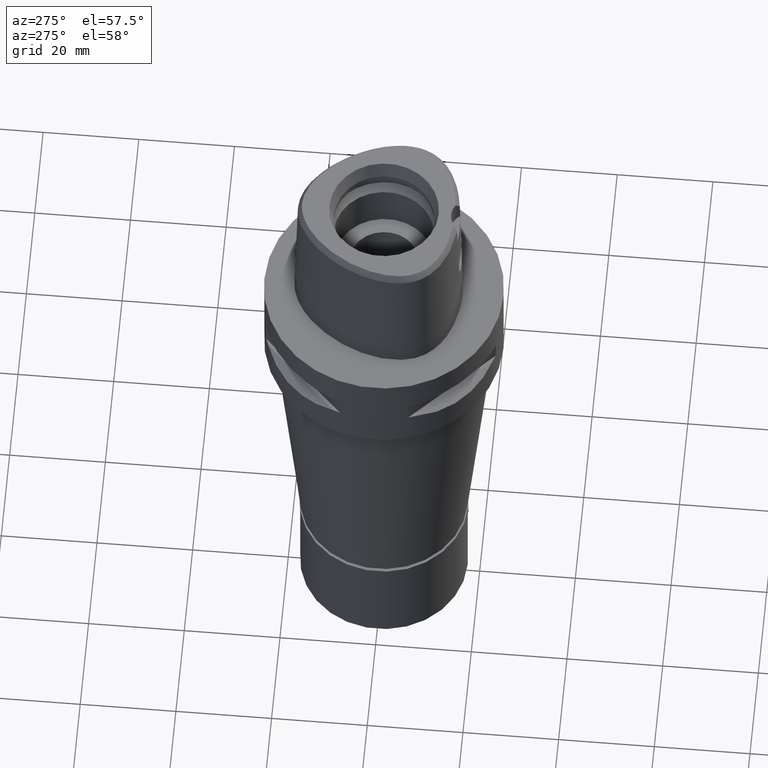
[diagram: clean part render]
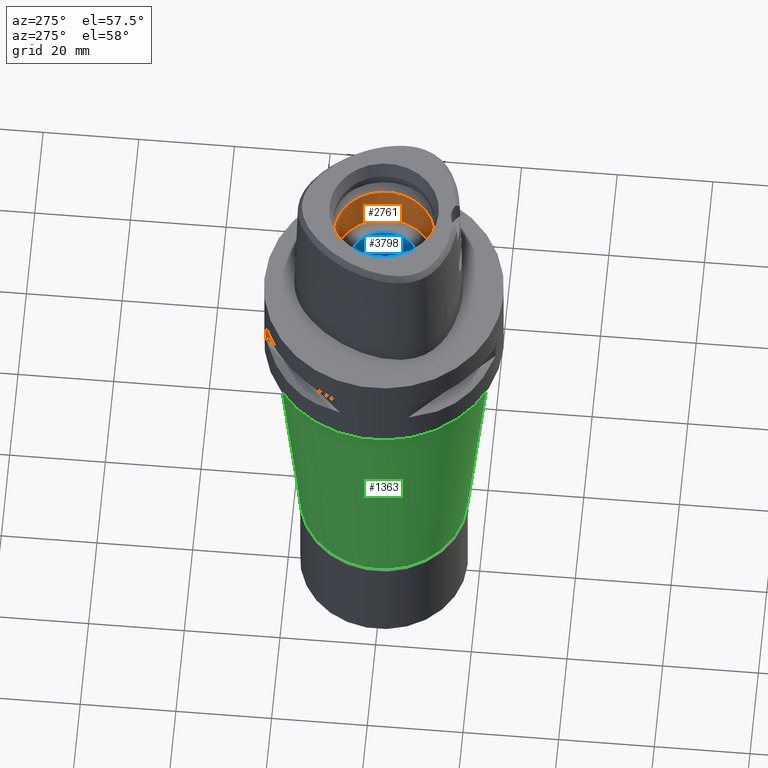
[diagram: same view with three faces highlighted in distinct colors, each labeled with its STEP entity id]
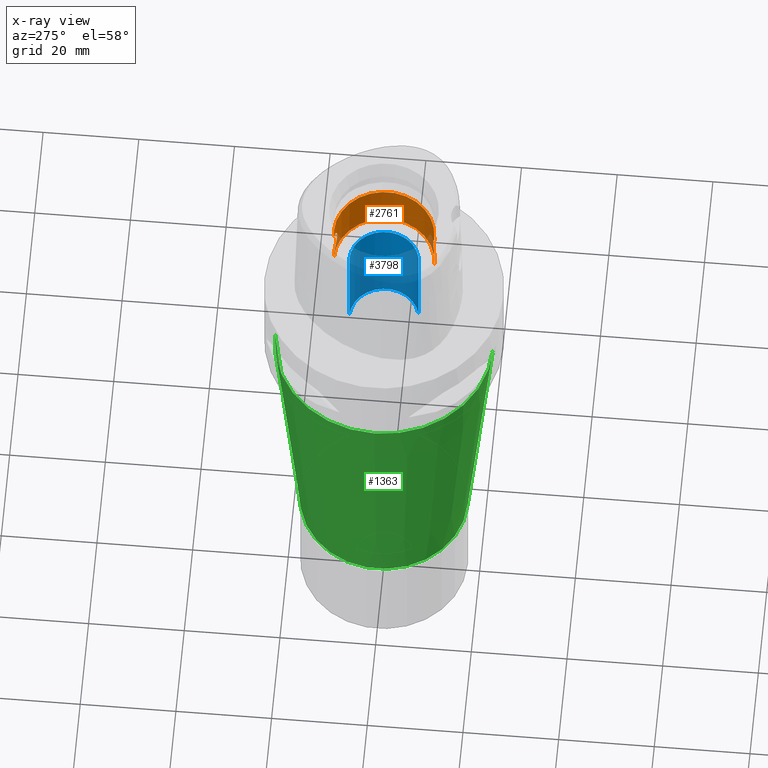
[diagram: x-ray of the same camera — body ghosted, the three highlighted faces saturated]
A machine part, auxiliary view with three faces highlighted in distinct colors.
The next image is the same camera in x-ray (body ghosted, the three faces saturated) — at least one of them is partly hidden behind the body in this view.
Their STEP definitions:

[orange] entity #2761 — the highlighted cylindrical surface (partial cylindrical patch) has radius 10.5 mm, axis along (0, 0, -1).
#10 = CARTESIAN_POINT ( 'NONE',  ( 3.027607236360491338, -10.05429310237827423, 14.38135529722916139 ) ) ;
#20 = CARTESIAN_POINT ( 'NONE',  ( 2.266059277725712473, 10.25301290801306564, 16.04582614265725127 ) ) ;
#164 = CARTESIAN_POINT ( 'NONE',  ( 2.484594037386860244, -10.20184754279077666, 15.76909523304286687 ) ) ;
#187 = DIRECTION ( 'NONE',  ( 0.0000000000000000000, 1.000000000000000000, 0.0000000000000000000 ) ) ;
#191 = CARTESIAN_POINT ( 'NONE',  ( 1.068304840379142640, 10.44547733483864072, 11.14301126591764124 ) ) ;
#245 = CARTESIAN_POINT ( 'NONE',  ( 2.125917809821220583, 10.28253520498295259, 11.81294270820976067 ) ) ;
#289 = CARTESIAN_POINT ( 'NONE',  ( 0.0000000000000000000, -10.50000000000000000, 10.00000000000000000 ) ) ;
#291 = CARTESIAN_POINT ( 'NONE',  ( 2.683269133176498844, -10.15143825073914741, 12.54912944303389821 ) ) ;
#297 = CARTESIAN_POINT ( 'NONE',  ( 1.741009038499361061, 10.35482127465683000, 11.49467963126939907 ) ) ;
#310 = ORIENTED_EDGE ( 'NONE', *, *, #1206, .T. ) ;
#317 = CARTESIAN_POINT ( 'NONE',  ( 1.707746356238994512, -10.36020401293069249, 11.47292517123250022 ) ) ;
#318 = VERTEX_POINT ( 'NONE', #1461 ) ;
#324 = CARTESIAN_POINT ( 'NONE',  ( 2.751833750823429625, 10.13317589947079078, 15.31899371384186104 ) ) ;
#339 = CARTESIAN_POINT ( 'NONE',  ( 2.844275244107489442, -10.10750057597628526, 12.89874350943842174 ) ) ;
#344 = CARTESIAN_POINT ( 'NONE',  ( 2.954882638286912222, 10.07596013546089253, 14.76248388676107304 ) ) ;
#360 = CARTESIAN_POINT ( 'NONE',  ( 2.899433381332750859, -10.09218068781909317, 14.96967267542248159 ) ) ;
#367 = CARTESIAN_POINT ( 'NONE',  ( 1.179391020529942269, 10.43344386839382310, 16.81277616977013523 ) ) ;
#389 = DIRECTION ( 'NONE',  ( 0.0000000000000000000, 0.0000000000000000000, 1.000000000000000000 ) ) ;
#391 = CARTESIAN_POINT ( 'NONE',  ( 1.833449799978573935, -10.33866271675340975, 11.56221769112445052 ) ) ;
#402 = CARTESIAN_POINT ( 'NONE',  ( 0.0000000000000000000, 10.50000000000000000, 10.00000000000000000 ) ) ;
#416 = CARTESIAN_POINT ( 'NONE',  ( 1.179453071966998223, -10.43343653779657565, 11.18724984501825048 ) ) ;
#495 = CARTESIAN_POINT ( 'NONE',  ( 0.3776990394879757851, -10.49999999999999822, 10.94999999999999751 ) ) ;
#520 = CARTESIAN_POINT ( 'NONE',  ( 0.7784719832900152126, -10.47826499193357641, 11.02113842329111115 ) ) ;
#544 = CARTESIAN_POINT ( 'NONE',  ( 2.449231481420490297, -10.21047344920699906, 15.81807234377296112 ) ) ;
#555 = AXIS2_PLACEMENT_3D ( 'NONE', #4542, #1146, #3091 ) ;
#582 = FACE_OUTER_BOUND ( 'NONE', #3289, .T. ) ;
#601 = CARTESIAN_POINT ( 'NONE',  ( 2.249117324495596648, 10.25680736615500166, 11.93506107646878611 ) ) ;
#616 = CARTESIAN_POINT ( 'NONE',  ( 1.068247455599155682, -10.44548337543123928, 16.85701016503113792 ) ) ;
#626 = CARTESIAN_POINT ( 'NONE',  ( 1.641185955450503720, 10.37094866851878905, 11.42913987663184905 ) ) ;
#647 = VECTOR ( 'NONE', #2576, 1000.000000000000000 ) ;
#653 = CARTESIAN_POINT ( 'NONE',  ( 0.7660006551117045648, 10.47222196285941109, 11.04602839572559425 ) ) ;
#674 = CARTESIAN_POINT ( 'NONE',  ( 2.342968627457624908, -10.23558722573572766, 12.04475145765551147 ) ) ;
#693 = CARTESIAN_POINT ( 'NONE',  ( 3.050005080898542165, -10.04725334564248307, 13.81500911718046076 ) ) ;
#699 = CARTESIAN_POINT ( 'NONE',  ( 1.716771890593367100, 10.35871102781786313, 16.52095790634485439 ) ) ;
#715 = CARTESIAN_POINT ( 'NONE',  ( 2.619496371660233969, -10.16802340642455604, 12.43749825123569508 ) ) ;
#723 = CARTESIAN_POINT ( 'NONE',  ( 1.612746601672543800, 10.37583416522087809, 16.59107516795645410 ) ) ;
#738 = CARTESIAN_POINT ( 'NONE',  ( 2.888899562011218780, -10.09491797827999449, 13.01950824191362699 ) ) ;
#745 = CARTESIAN_POINT ( 'NONE',  ( 1.210530326363612019, 10.42987676988509627, 16.79950987502767745 ) ) ;
#763 = CARTESIAN_POINT ( 'NONE',  ( 1.989381541700123712, -10.31000550252612946, 11.68587608860982208 ) ) ;
#768 = CARTESIAN_POINT ( 'NONE',  ( 0.0000000000000000000, 10.50000000000000000, 17.05000000000000071 ) ) ;
#795 = CARTESIAN_POINT ( 'NONE',  ( 2.791161911923253136, 10.12234823481193580, 15.23288588798741294 ) ) ;
#799 = DIRECTION ( 'NONE',  ( 0.0000000000000000000, 0.0000000000000000000, 1.000000000000000000 ) ) ;
#822 = VERTEX_POINT ( 'NONE', #1502 ) ;
#889 = CARTESIAN_POINT ( 'NONE',  ( 0.0000000000000000000, -10.50000000000000000, 10.94999999999999929 ) ) ;
#918 = ORIENTED_EDGE ( 'NONE', *, *, #4323, .F. ) ;
#939 = CARTESIAN_POINT ( 'NONE',  ( 1.811842809112848895, -10.34269679768338257, 16.45557948583557462 ) ) ;
#971 = CARTESIAN_POINT ( 'NONE',  ( 2.036679914428217053, 10.30054692282973505, 11.72948026184532822 ) ) ;
#990 = CARTESIAN_POINT ( 'NONE',  ( 1.568097863131003189, -10.38225193758933784, 16.61615038516162102 ) ) ;
#996 = CARTESIAN_POINT ( 'NONE',  ( 1.568183029894659297, 10.38223911306316793, 11.38390064694139880 ) ) ;
#1045 = CARTESIAN_POINT ( 'NONE',  ( 2.328117555959193563, -10.23900546424033919, 15.97295162130381918 ) ) ;
#1053 = CARTESIAN_POINT ( 'NONE',  ( 0.0000000000000000000, 10.50000000000000000, 10.94999999999999929 ) ) ;
#1072 = CARTESIAN_POINT ( 'NONE',  ( 2.912211511062697156, -10.08825325305797627, 13.09221294453771911 ) ) ;
#1077 = CARTESIAN_POINT ( 'NONE',  ( 3.033106798431654649, 10.05272106261938525, 14.37597179214599841 ) ) ;
#1091 = CARTESIAN_POINT ( 'NONE',  ( 2.741672579531738485, -10.13585776235383484, 15.33718066085879173 ) ) ;
#1098 = CARTESIAN_POINT ( 'NONE',  ( 2.342902607979631568, 10.23560269218701180, 15.95532767843970845 ) ) ;
#1115 = CARTESIAN_POINT ( 'NONE',  ( 2.266144854621401361, -10.25299388352025787, 11.95426803284425610 ) ) ;
#1121 = CARTESIAN_POINT ( 'NONE',  ( 3.050000168970783410, 10.04725645812263757, 14.18510065152947419 ) ) ;
#1139 = CARTESIAN_POINT ( 'NONE',  ( 2.531016047136658731, -10.19036528538620878, 15.70189936972407274 ) ) ;
#1145 = CARTESIAN_POINT ( 'NONE',  ( 2.741748741093708031, 10.13583772775565350, 12.66297536229638965 ) ) ;
#1146 = DIRECTION ( 'NONE',  ( 0.0000000000000000000, 0.0000000000000000000, 1.000000000000000000 ) ) ;
#1170 = CARTESIAN_POINT ( 'NONE',  ( 1.756864160062843627, 10.35198327950409691, 16.49330503796353753 ) ) ;
#1206 = EDGE_CURVE ( 'NONE', #4276, #2969, #3174, .T. ) ;
#1269 = CARTESIAN_POINT ( 'NONE',  ( 0.0000000000000000000, -10.50000000000000000, 10.00000000000000000 ) ) ;
#1319 = CARTESIAN_POINT ( 'NONE',  ( 0.9838845370238309407, -10.45387372780990809, 16.88774268329863304 ) ) ;
#1324 = CARTESIAN_POINT ( 'NONE',  ( 2.517831763548803892, 10.19364012408456155, 12.27862306712738771 ) ) ;
#1344 = CARTESIAN_POINT ( 'NONE',  ( 2.136100343734112617, -10.28042929747009815, 16.17712836185316760 ) ) ;
#1367 = CARTESIAN_POINT ( 'NONE',  ( 1.141732985535315326, -10.43768196579646279, 16.82826384510322626 ) ) ;
#1398 = CARTESIAN_POINT ( 'NONE',  ( 1.456436929924989965, -10.39854506465477968, 16.68025671205563398 ) ) ;
#1419 = CARTESIAN_POINT ( 'NONE',  ( 1.669234959747533331, -10.36646163797745679, 16.55268481105852629 ) ) ;
#1428 = CARTESIAN_POINT ( 'NONE',  ( 1.669325064468442976, 10.36644722215271663, 11.44737411065967514 ) ) ;
#1447 = CARTESIAN_POINT ( 'NONE',  ( 1.707003811296404328, -10.36032678721340439, 11.47242214210652378 ) ) ;
#1455 = CARTESIAN_POINT ( 'NONE',  ( 2.834772115109987833, 10.11016348655484443, 15.12549303329436157 ) ) ;
#1461 = CARTESIAN_POINT ( 'NONE',  ( 0.0000000000000000000, 10.50000000000000000, 20.40000000000000213 ) ) ;
#1472 = CARTESIAN_POINT ( 'NONE',  ( 2.834826346757756799, -10.11014960679703911, 12.87464356492052531 ) ) ;
#1477 = CARTESIAN_POINT ( 'NONE',  ( 2.899493436784370992, 10.09216444762106768, 13.03050769528760000 ) ) ;
#1494 = CARTESIAN_POINT ( 'NONE',  ( 2.772319110776069184, -10.12750285136528561, 15.27174168419082534 ) ) ;
#1500 = CARTESIAN_POINT ( 'NONE',  ( 2.594875644332625075, 10.17449012125671892, 12.39333396167576318 ) ) ;
#1502 = CARTESIAN_POINT ( 'NONE',  ( 0.0000000000000000000, -10.50000000000000000, 10.94999999999999929 ) ) ;
#1520 = CARTESIAN_POINT ( 'NONE',  ( 1.342365910254549100, -10.41382946864366232, 11.26085191158715482 ) ) ;
#1529 = CARTESIAN_POINT ( 'NONE',  ( 2.888851203371929355, 10.09493059036141283, 14.98063416284209737 ) ) ;
#1549 = CARTESIAN_POINT ( 'NONE',  ( 2.531198843314137026, -10.19031986401626710, 15.70162992011681347 ) ) ;
#1554 = VERTEX_POINT ( 'NONE', #3913 ) ;
#1556 = CARTESIAN_POINT ( 'NONE',  ( 1.989303514921276106, 10.31002034770298259, 16.31419092006700922 ) ) ;
#1621 = DIRECTION ( 'NONE',  ( 0.0000000000000000000, -1.000000000000000000, 0.0000000000000000000 ) ) ;
#1626 = LINE ( 'NONE', #2382, #2234 ) ;
#1724 = CARTESIAN_POINT ( 'NONE',  ( 0.1867674398480352604, -10.49999999999999467, 17.04999999999999005 ) ) ;
#1729 = CARTESIAN_POINT ( 'NONE',  ( 1.237025000625841198, 10.42716557871960603, 11.21062230838127860 ) ) ;
#1747 = CARTESIAN_POINT ( 'NONE',  ( 0.6688774812611679721, -10.47883812602031561, 16.97738131204618384 ) ) ;
#1771 = CARTESIAN_POINT ( 'NONE',  ( 0.7659603749334191747, -10.47222504040166413, 16.95398183797882297 ) ) ;
#1816 = CARTESIAN_POINT ( 'NONE',  ( 2.957410717728170990, -10.07534498681893709, 14.77193191733126199 ) ) ;
#1822 = CARTESIAN_POINT ( 'NONE',  ( 3.032693110682603610, 10.05288456797676133, 13.61931366745536032 ) ) ;
#1841 = CARTESIAN_POINT ( 'NONE',  ( 1.612833193455769809, -10.37582084644413172, 11.40897843857475102 ) ) ;
#1848 = CARTESIAN_POINT ( 'NONE',  ( 2.658740901850715321, 10.15788282424452227, 15.49542257597942019 ) ) ;
#1865 = CARTESIAN_POINT ( 'NONE',  ( 2.751884679008838042, -10.13316287932903847, 12.68111214655986352 ) ) ;
#1870 = CARTESIAN_POINT ( 'NONE',  ( 1.342293398566658302, 10.41383903480989659, 16.73918355943972713 ) ) ;
#1884 = DIRECTION ( 'NONE',  ( 0.0000000000000000000, 0.0000000000000000000, 1.000000000000000000 ) ) ;
#1886 = CARTESIAN_POINT ( 'NONE',  ( 2.078135821199520006, -10.29274126334308193, 11.76353330178664436 ) ) ;
#1894 = CARTESIAN_POINT ( 'NONE',  ( 2.719777489731752151, 10.14175641246910509, 12.61874419158407257 ) ) ;
#1915 = CARTESIAN_POINT ( 'NONE',  ( 2.813871346667223605, -10.11602783675715500, 15.17677601548344590 ) ) ;
#1923 = CARTESIAN_POINT ( 'NONE',  ( 2.599143935910247727, 10.17324269225242794, 15.59630357577572290 ) ) ;
#1986 = EDGE_CURVE ( 'NONE', #1554, #318, #2147, .T. ) ;
#2054 = CYLINDRICAL_SURFACE ( 'NONE', #4070, 10.50000000000000000 ) ;
#2069 = CARTESIAN_POINT ( 'NONE',  ( 1.601744847466686217, -10.37714138207295811, 16.59579339570974810 ) ) ;
#2093 = CARTESIAN_POINT ( 'NONE',  ( 1.641097190152380758, -10.37096263372367666, 16.57091677865613732 ) ) ;
#2118 = CARTESIAN_POINT ( 'NONE',  ( 2.501007571786316497, 10.19780901880303148, 12.25415054794054193 ) ) ;
#2140 = ORIENTED_EDGE ( 'NONE', *, *, #3586, .T. ) ;
#2142 = CARTESIAN_POINT ( 'NONE',  ( 1.676810051163375226, 10.36523773137657045, 11.45228955112436253 ) ) ;
#2147 = CIRCLE ( 'NONE', #555, 10.50000000000000000 ) ;
#2171 = CARTESIAN_POINT ( 'NONE',  ( 2.103306347312082103, 10.28717493434257335, 11.79118843242692272 ) ) ;
#2190 = CARTESIAN_POINT ( 'NONE',  ( 2.978168158509828967, -10.06911518369448721, 13.33467206363919111 ) ) ;
#2212 = CARTESIAN_POINT ( 'NONE',  ( 2.599201387564405330, -10.17322772404753906, 12.40379000138812771 ) ) ;
#2219 = CARTESIAN_POINT ( 'NONE',  ( 1.711288638953645469, 10.35961863196406618, 16.52467740562460463 ) ) ;
#2234 = VECTOR ( 'NONE', #389, 1000.000000000000000 ) ;
#2236 = CARTESIAN_POINT ( 'NONE',  ( 0.0000000000000000000, 10.50000000000000000, 10.94999999999999929 ) ) ;
#2238 = CARTESIAN_POINT ( 'NONE',  ( 2.517739876222782058, -10.19366303897557202, 15.72151130424244414 ) ) ;
#2241 = EDGE_CURVE ( 'NONE', #4276, #3438, #2685, .T. ) ;
#2245 = CARTESIAN_POINT ( 'NONE',  ( 1.521598319489793960, 10.38951171456280420, 16.64529504370056401 ) ) ;
#2263 = CARTESIAN_POINT ( 'NONE',  ( 2.574354970550871258, -10.17952184411067584, 12.36430098328962046 ) ) ;
#2268 = CARTESIAN_POINT ( 'NONE',  ( 2.512921878327357472, 10.19492176240133574, 15.72972677541441300 ) ) ;
#2283 = ORIENTED_EDGE ( 'NONE', *, *, #3428, .T. ) ;
#2286 = CARTESIAN_POINT ( 'NONE',  ( 2.787064406588477983, -10.12345627881758148, 15.23924730534490024 ) ) ;
#2318 = CARTESIAN_POINT ( 'NONE',  ( 2.683217006026694218, 10.15145179342974657, 15.45096686760947335 ) ) ;
#2357 = ORIENTED_EDGE ( 'NONE', *, *, #2241, .F. ) ;
#2382 = CARTESIAN_POINT ( 'NONE',  ( 0.0000000000000000000, -10.50000000000000000, 17.05000000000000071 ) ) ;
#2408 = CARTESIAN_POINT ( 'NONE',  ( 1.188897683297293284, -10.43236352860217053, 11.19123487431793151 ) ) ;
#2488 = CARTESIAN_POINT ( 'NONE',  ( 0.6689123131997048999, 10.47883578122621806, 11.02262632832484179 ) ) ;
#2504 = CARTESIAN_POINT ( 'NONE',  ( 1.930388096063102799, -10.32098858174314415, 16.36191406334469889 ) ) ;
#2510 = CARTESIAN_POINT ( 'NONE',  ( 0.1867762931947433980, 10.50000000000000533, 10.94999999999999574 ) ) ;
#2528 = CARTESIAN_POINT ( 'NONE',  ( 1.740926287971506836, -10.35483511188262185, 16.50537809591427063 ) ) ;
#2553 = CARTESIAN_POINT ( 'NONE',  ( 2.954919872153779714, -10.07594969640612881, 13.23766054668898917 ) ) ;
#2560 = CARTESIAN_POINT ( 'NONE',  ( 1.658067691843498448, 10.36825398497855666, 11.44004753343781466 ) ) ;
#2576 = DIRECTION ( 'NONE',  ( 0.0000000000000000000, 0.0000000000000000000, 1.000000000000000000 ) ) ;
#2578 = CARTESIAN_POINT ( 'NONE',  ( 2.561634872386847395, -10.18272450818466446, 12.34452234617988609 ) ) ;
#2583 = CARTESIAN_POINT ( 'NONE',  ( 1.833369269897767939, 10.33867676248954304, 16.43784289472683113 ) ) ;
#2598 = CARTESIAN_POINT ( 'NONE',  ( 2.829361163358425024, -10.11167872823986613, 12.86099082516203751 ) ) ;
#2604 = CARTESIAN_POINT ( 'NONE',  ( 2.078056134113488440, 10.29275713199363729, 16.23654017616943079 ) ) ;
#2614 = B_SPLINE_CURVE_WITH_KNOTS ( 'NONE', 3,
 ( #1053, #2510, #2838, #2488, #653, #3265, #4422, #191, #4774, #2945, #2866, #1729, #2891, #3621, #4396, #996, #2919, #626, #2560, #1428, #2142, #297, #4370, #3642, #3212, #971, #4018, #2171, #245, #4835, #601, #4446, #4073, #4750, #3314, #2118, #1324, #3696, #3993, #4856, #4216, #1500, #4954, #1894, #1145, #3015, #4882, #4907, #3411, #2682, #1477, #4495, #1822, #3361, #1121, #1077, #3767, #344, #2992, #1529, #3743, #3065, #1455, #3334, #795, #324, #2318, #1848, #3042, #1923, #4516, #3442, #2971, #4119, #4541, #2268, #4569, #1098, #20, #2604, #1556, #4592, #2583, #3848, #1170, #2631, #699, #2219, #4145, #2657, #723, #2245, #4168, #1870, #4190, #3384, #745, #3821, #367, #4927, #3792, #768 ),
 .UNSPECIFIED., .F., .F.,
 ( 4, 2, 2, 1, 1, 2, 2, 2, 2, 1, 1, 2, 2, 2, 2, 1, 2, 2, 2, 2, 1, 1, 1, 2, 2, 2, 2, 1, 2, 2, 2, 2, 2, 2, 1, 1, 2, 2, 2, 2, 1, 1, 1, 2, 2, 2, 2, 2, 2, 1, 1, 1, 2, 2, 2, 2, 1, 2, 2, 4 ),
 ( 0.0000000000000000000, 0.06249999999998658018, 0.09374999999997986333, 0.1093749999999765743, 0.1171874999999750339, 0.1210937499999743538, 0.1249999999999736877, 0.1562499999999691636, 0.1718749999999669154, 0.1796874999999656664, 0.1835937499999650835, 0.1855468749999648337, 0.1874999999999645561, 0.2187499999999604483, 0.2343749999999585887, 0.2421874999999578670, 0.2460937499999576727, 0.2499999999999574785, 0.2812499999999570344, 0.2968749999999568123, 0.3046874999999566458, 0.3085937499999570344, 0.3105468749999572009, 0.3115234374999573119, 0.3124999999999574229, 0.3437499999999577560, 0.3593749999999579781, 0.3671874999999581446, 0.3710937499999584777, 0.3749999999999587552, 0.4374999999999702460, 0.4999999999999816813, 0.5624999999999931166, 0.5937499999999988898, 0.6093750000000014433, 0.6171875000000025535, 0.6210937500000034417, 0.6250000000000042188, 0.6562500000000121014, 0.6718750000000157652, 0.6796875000000173195, 0.6835937500000179856, 0.6855468750000178746, 0.6865234375000177636, 0.6875000000000176525, 0.7187500000000185407, 0.7500000000000193179, 0.7812500000000202061, 0.7968750000000206501, 0.8046875000000205391, 0.8085937500000204281, 0.8105468750000199840, 0.8115234375000198730, 0.8125000000000196509, 0.8437500000000147660, 0.8593750000000121014, 0.8671875000000107692, 0.8710937500000103251, 0.8750000000000099920, 1.000000000000000000 ),
 .UNSPECIFIED. ) ;
#2622 = CARTESIAN_POINT ( 'NONE',  ( 0.0000000000000000000, 10.50000000000000000, 17.05000000000000071 ) ) ;
#2624 = CARTESIAN_POINT ( 'NONE',  ( 1.729899245027333832, -10.35652539926146964, 11.48800997733543561 ) ) ;
#2631 = CARTESIAN_POINT ( 'NONE',  ( 1.729811899954632137, 10.35653978205428238, 16.51205017558249821 ) ) ;
#2651 = CARTESIAN_POINT ( 'NONE',  ( 2.800979720946436213, -10.11960603068971132, 15.20712345414295541 ) ) ;
#2657 = CARTESIAN_POINT ( 'NONE',  ( 1.706913597192786902, 10.36034146067853001, 16.52763878149810850 ) ) ;
#2682 = CARTESIAN_POINT ( 'NONE',  ( 2.813945975878913597, 10.11600799454591382, 12.82340245404689050 ) ) ;
#2685 = LINE ( 'NONE', #402, #3584 ) ;
#2761 = ADVANCED_FACE ( 'NONE', ( #582 ), #2054, .F. ) ;
#2838 = CARTESIAN_POINT ( 'NONE',  ( 0.3787274524729241088, 10.49470894530655585, 10.96720324273423230 ) ) ;
#2866 = CARTESIAN_POINT ( 'NONE',  ( 1.141794485349679533, 10.43767506429853498, 11.17176097919053035 ) ) ;
#2884 = CARTESIAN_POINT ( 'NONE',  ( 1.236957856289733648, -10.42717367617683877, 16.78940726311529374 ) ) ;
#2891 = CARTESIAN_POINT ( 'NONE',  ( 1.323968914917773576, 10.41650450081921520, 11.25053714606789157 ) ) ;
#2909 = CARTESIAN_POINT ( 'NONE',  ( 1.500968808066890148, -10.39222569595904844, 16.65561435862955619 ) ) ;
#2919 = CARTESIAN_POINT ( 'NONE',  ( 1.601831701822557852, 10.37712803855626653, 11.40426016688910060 ) ) ;
#2939 = CARTESIAN_POINT ( 'NONE',  ( 2.125820991384376413, -10.28255521734048017, 16.18715138478157201 ) ) ;
#2945 = CARTESIAN_POINT ( 'NONE',  ( 1.128390770668204368, 10.43913220284297871, 11.16638025997056616 ) ) ;
#2965 = CARTESIAN_POINT ( 'NONE',  ( 1.521680657581645058, -10.38949967355637405, 11.35475204899650414 ) ) ;
#2969 = VERTEX_POINT ( 'NONE', #1269 ) ;
#2971 = CARTESIAN_POINT ( 'NONE',  ( 2.556057301366541079, 10.18412497569700292, 15.66405603269521407 ) ) ;
#2981 = ORIENTED_EDGE ( 'NONE', *, *, #1986, .T. ) ;
#2988 = CARTESIAN_POINT ( 'NONE',  ( 1.276169219736535076, -10.42207001621971330, 11.22971359884679643 ) ) ;
#2992 = CARTESIAN_POINT ( 'NONE',  ( 2.912166724522450512, 10.08826516473213353, 14.90793074597630863 ) ) ;
#3007 = CARTESIAN_POINT ( 'NONE',  ( 2.648768239977827399, -10.16058067332577330, 15.51550484575867550 ) ) ;
#3015 = CARTESIAN_POINT ( 'NONE',  ( 2.772394022729113061, 10.12748308155553545, 12.72842159383908367 ) ) ;
#3019 = VERTEX_POINT ( 'NONE', #3062 ) ;
#3036 = CARTESIAN_POINT ( 'NONE',  ( 1.243239666746700278, -10.42606412921035286, 11.21470856859099108 ) ) ;
#3042 = CARTESIAN_POINT ( 'NONE',  ( 2.619440559726794238, 10.16803796970934570, 15.56259531550523256 ) ) ;
#3059 = CARTESIAN_POINT ( 'NONE',  ( 3.045675422398149923, -10.04867475032002666, 14.18894089495660360 ) ) ;
#3062 = CARTESIAN_POINT ( 'NONE',  ( 0.0000000000000000000, -10.50000000000000000, 17.05000000000000071 ) ) ;
#3065 = CARTESIAN_POINT ( 'NONE',  ( 2.844221904569424364, 10.10751425218369270, 15.10139423921080493 ) ) ;
#3091 = DIRECTION ( 'NONE',  ( 0.0000000000000000000, -1.000000000000000000, 0.0000000000000000000 ) ) ;
#3174 = CIRCLE ( 'NONE', #4780, 10.50000000000000000 ) ;
#3206 = CARTESIAN_POINT ( 'NONE',  ( 1.971913834745691041, -10.31316905232283787, 16.32752121028857673 ) ) ;
#3212 = CARTESIAN_POINT ( 'NONE',  ( 1.971998943813676464, 10.31315283188854970, 11.67255075536784048 ) ) ;
#3229 = CARTESIAN_POINT ( 'NONE',  ( 1.676718924548066481, -10.36525237659834708, 16.54777042361276784 ) ) ;
#3231 = DIRECTION ( 'NONE',  ( 0.0000000000000000000, 0.0000000000000000000, -1.000000000000000000 ) ) ;
#3265 = CARTESIAN_POINT ( 'NONE',  ( 0.9113412802385332245, 10.46031708979915642, 11.08889911175240250 ) ) ;
#3285 = CARTESIAN_POINT ( 'NONE',  ( 0.3787085517134362589, -10.49470953150507491, 17.03279839123862516 ) ) ;
#3288 = EDGE_CURVE ( 'NONE', #4845, #318, #3305, .T. ) ;
#3289 = EDGE_LOOP ( 'NONE', ( #2357, #310, #2283, #918, #2140, #2981, #3440, #4662 ) ) ;
#3305 = LINE ( 'NONE', #2622, #4232 ) ;
#3309 = CARTESIAN_POINT ( 'NONE',  ( 2.069523711590793624, -10.29404353534653893, 16.24080587214390192 ) ) ;
#3314 = CARTESIAN_POINT ( 'NONE',  ( 2.484679344344793428, 10.20182652914187749, 12.23102453892436436 ) ) ;
#3329 = CARTESIAN_POINT ( 'NONE',  ( 1.781763810728749897, -10.34769672004815533, 11.52446512619911090 ) ) ;
#3334 = CARTESIAN_POINT ( 'NONE',  ( 2.829305774436964516, 10.11169290979873914, 15.13914673285657564 ) ) ;
#3356 = CARTESIAN_POINT ( 'NONE',  ( 3.033122084150415176, -10.05271522072828461, 13.62415721944560865 ) ) ;
#3361 = CARTESIAN_POINT ( 'NONE',  ( 3.049999831026677377, 10.04726935032737423, 13.81489378007296054 ) ) ;
#3379 = CARTESIAN_POINT ( 'NONE',  ( 2.556119287377531357, -10.18410899365403388, 12.33603918460904758 ) ) ;
#3384 = CARTESIAN_POINT ( 'NONE',  ( 1.243173268033157974, 10.42607234194795041, 16.78532104131815217 ) ) ;
#3403 = CARTESIAN_POINT ( 'NONE',  ( 1.716860572636586868, -10.35869652779481065, 11.47910248954204704 ) ) ;
#3411 = CARTESIAN_POINT ( 'NONE',  ( 2.810150186842730768, 10.11706320198501885, 12.81438185252704010 ) ) ;
#3428 = EDGE_CURVE ( 'NONE', #2969, #822, #3711, .T. ) ;
#3433 = CARTESIAN_POINT ( 'NONE',  ( 2.858194183440916802, -10.10359114810717074, 12.93492166893522999 ) ) ;
#3438 = VERTEX_POINT ( 'NONE', #2236 ) ;
#3440 = ORIENTED_EDGE ( 'NONE', *, *, #3288, .F. ) ;
#3442 = CARTESIAN_POINT ( 'NONE',  ( 2.561573521332727754, 10.18274035299797653, 15.65557258540448515 ) ) ;
#3576 = DIRECTION ( 'NONE',  ( 0.0000000000000000000, 0.0000000000000000000, -1.000000000000000000 ) ) ;
#3584 = VECTOR ( 'NONE', #799, 1000.000000000000000 ) ;
#3586 = EDGE_CURVE ( 'NONE', #3019, #1554, #1626, .T. ) ;
#3621 = CARTESIAN_POINT ( 'NONE',  ( 1.456516304994851740, 10.39853391455664422, 11.31978635711826264 ) ) ;
#3627 = CARTESIAN_POINT ( 'NONE',  ( 0.0000000000000000000, 1.610410540878999754E-14, 31.50000000000000000 ) ) ;
#3642 = CARTESIAN_POINT ( 'NONE',  ( 1.930471181832135841, 10.32097309169662402, 11.63815379020955909 ) ) ;
#3662 = CARTESIAN_POINT ( 'NONE',  ( 1.104310761165587129, -10.44170151709308136, 16.84309062177460348 ) ) ;
#3690 = CARTESIAN_POINT ( 'NONE',  ( 0.9112927875690969293, -10.46032148628809821, 16.91111601522402452 ) ) ;
#3696 = CARTESIAN_POINT ( 'NONE',  ( 2.525703912823533237, 10.19168522689454193, 12.29022032175031676 ) ) ;
#3711 = LINE ( 'NONE', #289, #647 ) ;
#3713 = CARTESIAN_POINT ( 'NONE',  ( 2.719700136812867708, -10.14177672420369447, 15.38140804886839419 ) ) ;
#3737 = CARTESIAN_POINT ( 'NONE',  ( 1.870655397227993788, -10.33198768520815669, 11.59049268858693438 ) ) ;
#3743 = CARTESIAN_POINT ( 'NONE',  ( 2.858142235063988235, 10.10360451450117836, 15.06521770040169272 ) ) ;
#3760 = CARTESIAN_POINT ( 'NONE',  ( 2.525609857181217333, -10.19170874939327298, 15.70991860409097818 ) ) ;
#3767 = CARTESIAN_POINT ( 'NONE',  ( 2.978136503180997874, 10.06912454526318790, 14.66547041873873525 ) ) ;
#3787 = CARTESIAN_POINT ( 'NONE',  ( 2.466005327969370775, -10.20661944846525593, 12.20241368106630375 ) ) ;
#3792 = CARTESIAN_POINT ( 'NONE',  ( 0.3776824852752250772, 10.50000000000000355, 17.05000000000000426 ) ) ;
#3815 = CARTESIAN_POINT ( 'NONE',  ( 3.049997457825905034, -10.04726768335126152, 14.09262106841230988 ) ) ;
#3821 = CARTESIAN_POINT ( 'NONE',  ( 1.188834861623554007, 10.43237100269823969, 16.80879171232257008 ) ) ;
#3848 = CARTESIAN_POINT ( 'NONE',  ( 1.781680532611264578, 10.34771082985013102, 16.47559481630333877 ) ) ;
#3913 = CARTESIAN_POINT ( 'NONE',  ( 0.0000000000000000000, -10.50000000000000000, 20.40000000000000213 ) ) ;
#3958 = CARTESIAN_POINT ( 'NONE',  ( 2.422046306151929951, -10.21701399604496885, 15.85438239164646923 ) ) ;
#3980 = EDGE_CURVE ( 'NONE', #3438, #4845, #2614, .T. ) ;
#3993 = CARTESIAN_POINT ( 'NONE',  ( 2.528963694661899186, 10.19087517456365255, 12.29505239684788798 ) ) ;
#4012 = CARTESIAN_POINT ( 'NONE',  ( 0.0000000000000000000, 10.50000000000000000, 10.00000000000000000 ) ) ;
#4014 = CARTESIAN_POINT ( 'NONE',  ( 0.0000000000000000000, 1.610410540878999754E-14, 10.00000000000000000 ) ) ;
#4018 = CARTESIAN_POINT ( 'NONE',  ( 2.069615633388303788, 10.29402508846365905, 11.75927893724290030 ) ) ;
#4065 = CARTESIAN_POINT ( 'NONE',  ( 2.036590477875869887, -10.30056457203203024, 16.27059992390260490 ) ) ;
#4070 = AXIS2_PLACEMENT_3D ( 'NONE', #3627, #3576, #1621 ) ;
#4073 = CARTESIAN_POINT ( 'NONE',  ( 2.422125717787686927, 10.21699491830633733, 12.14572125794200552 ) ) ;
#4092 = CARTESIAN_POINT ( 'NONE',  ( 2.500919610565563556, -10.19783081804284031, 15.74597536509110185 ) ) ;
#4114 = CARTESIAN_POINT ( 'NONE',  ( 2.810076276443413068, -10.11708282625331634, 15.18579330039645470 ) ) ;
#4119 = CARTESIAN_POINT ( 'NONE',  ( 2.552365511455812364, 10.18505070645073829, 15.66971306030390920 ) ) ;
#4139 = CARTESIAN_POINT ( 'NONE',  ( 2.658794028149571442, -10.15786896108676451, 12.50467189553370240 ) ) ;
#4145 = CARTESIAN_POINT ( 'NONE',  ( 1.707656667445168974, 10.36021860589432642, 16.52713543649985084 ) ) ;
#4160 = CARTESIAN_POINT ( 'NONE',  ( 2.528868665928027504, -10.19089896813328266, 15.70508855078493760 ) ) ;
#4168 = CARTESIAN_POINT ( 'NONE',  ( 1.386873019028519671, 10.40800951961785259, 16.71692290240557455 ) ) ;
#4175 = B_SPLINE_CURVE_WITH_KNOTS ( 'NONE', 3,
 ( #4797, #1724, #3285, #1747, #1771, #3690, #1319, #616, #3662, #4390, #1367, #2884, #4828, #1398, #2909, #990, #2069, #2093, #4440, #1419, #3229, #2528, #939, #2504, #3206, #4065, #3309, #4766, #2939, #1344, #4463, #1045, #3958, #544, #164, #4092, #2238, #3760, #4160, #1139, #1549, #4512, #3007, #3713, #1091, #1494, #2286, #2651, #4114, #1915, #360, #1816, #4185, #10, #3059, #3815, #693, #3356, #2190, #2553, #1072, #738, #3433, #339, #1472, #2598, #4490, #1865, #291, #4139, #715, #2212, #2263, #2578, #3379, #4536, #4586, #4921, #3787, #674, #1115, #1886, #763, #3737, #391, #3329, #4874, #2624, #3403, #4946, #317, #1447, #1841, #2965, #4902, #1520, #2988, #3036, #4560, #2408, #416, #520, #495, #889 ),
 .UNSPECIFIED., .F., .F.,
 ( 4, 2, 2, 1, 1, 2, 2, 2, 2, 1, 1, 2, 2, 2, 2, 1, 2, 2, 2, 2, 1, 1, 1, 2, 2, 2, 2, 1, 2, 2, 2, 2, 2, 2, 2, 1, 1, 2, 2, 2, 2, 1, 1, 1, 2, 2, 2, 2, 2, 2, 1, 1, 1, 2, 2, 2, 2, 1, 2, 2, 4 ),
 ( 0.0000000000000000000, 0.06249999999992951472, 0.09374999999989434840, 0.1093749999998765987, 0.1171874999998677308, 0.1210937499998632622, 0.1249999999998588074, 0.1562499999998203382, 0.1718749999998008260, 0.1796874999997910560, 0.1835937499997860878, 0.1855468749997836175, 0.1874999999997811473, 0.2187499999997441213, 0.2343749999997252753, 0.2421874999997158384, 0.2460937499997114253, 0.2499999999997069844, 0.2812499999996705968, 0.2968749999996523337, 0.3046874999996431743, 0.3085937499996391775, 0.3105468749996372901, 0.3115234374996369571, 0.3124999999996366240, 0.3437499999996477262, 0.3593749999996534994, 0.3671874999996566080, 0.3710937499996579403, 0.3749999999996592170, 0.4374999999996792566, 0.4687499999996892486, 0.4999999999996992406, 0.5624999999997192246, 0.5937499999997293276, 0.6093749999997343236, 0.6171874999997368771, 0.6210937499997380984, 0.6249999999997393196, 0.6562499999997486455, 0.6718749999997531974, 0.6796874999997555289, 0.6835937499997566391, 0.6855468749997573052, 0.6865234374997576383, 0.6874999999997579714, 0.7187499999997785105, 0.7499999999997989386, 0.7812499999998194777, 0.7968749999998296918, 0.8046874999998347988, 0.8085937499998374633, 0.8105468749998386846, 0.8115234374998394618, 0.8124999999998401279, 0.8437499999998666622, 0.8593749999998798739, 0.8671874999998865352, 0.8710937499998897549, 0.8749999999998930855, 1.000000000000000000 ),
 .UNSPECIFIED. ) ;
#4185 = CARTESIAN_POINT ( 'NONE',  ( 3.013860203605535748, -10.05850444702513258, 14.47860310561554975 ) ) ;
#4190 = CARTESIAN_POINT ( 'NONE',  ( 1.276100751158435687, 10.42207867785851150, 16.77031792542444677 ) ) ;
#4216 = CARTESIAN_POINT ( 'NONE',  ( 2.531295471044747725, 10.19029565195985754, 12.29851382421090200 ) ) ;
#4232 = VECTOR ( 'NONE', #1884, 1000.000000000000000 ) ;
#4276 = VERTEX_POINT ( 'NONE', #4012 ) ;
#4323 = EDGE_CURVE ( 'NONE', #3019, #822, #4175, .T. ) ;
#4370 = CARTESIAN_POINT ( 'NONE',  ( 1.811923068244540858, 10.34268283242746556, 11.54447952460040483 ) ) ;
#4390 = CARTESIAN_POINT ( 'NONE',  ( 1.128329994157148075, -10.43913894641584861, 16.83364393760651723 ) ) ;
#4396 = CARTESIAN_POINT ( 'NONE',  ( 1.501050544122898511, 10.39221389090045378, 11.34443176979364054 ) ) ;
#4422 = CARTESIAN_POINT ( 'NONE',  ( 0.9839371454425469565, 10.45386861689153157, 11.11227514083121015 ) ) ;
#4440 = CARTESIAN_POINT ( 'NONE',  ( 1.657978121026951523, -10.36826822009252247, 16.56001047764421941 ) ) ;
#4446 = CARTESIAN_POINT ( 'NONE',  ( 2.328196717489500855, 10.23898725311158664, 12.02714150818214200 ) ) ;
#4463 = CARTESIAN_POINT ( 'NONE',  ( 2.249032427112489074, -10.25682621327920252, 16.06503230505761337 ) ) ;
#4490 = CARTESIAN_POINT ( 'NONE',  ( 2.791214425727966741, -10.12233497789926773, 12.76723173827698155 ) ) ;
#4495 = CARTESIAN_POINT ( 'NONE',  ( 2.957454687630677537, 10.07533207755579241, 13.22824138619685819 ) ) ;
#4512 = CARTESIAN_POINT ( 'NONE',  ( 2.594787844664584675, -10.17451272417047825, 15.60680824590878757 ) ) ;
#4516 = CARTESIAN_POINT ( 'NONE',  ( 2.574295022007341061, 10.17953738072134584, 15.63579337297379901 ) ) ;
#4536 = CARTESIAN_POINT ( 'NONE',  ( 2.552427928396863166, -10.18503463177848545, 12.33038235610675137 ) ) ;
#4541 = CARTESIAN_POINT ( 'NONE',  ( 2.549768802785917998, 10.18570099339338775, 15.67367355964590914 ) ) ;
#4542 = CARTESIAN_POINT ( 'NONE',  ( 0.0000000000000000000, 1.483659597167000164E-14, 20.40000000000000213 ) ) ;
#4560 = CARTESIAN_POINT ( 'NONE',  ( 1.210594587562798585, -10.42986900100492065, 11.20051790911941758 ) ) ;
#4569 = CARTESIAN_POINT ( 'NONE',  ( 2.465945275195896791, 10.20663448906458903, 15.79766872929614507 ) ) ;
#4586 = CARTESIAN_POINT ( 'NONE',  ( 2.549831744840582726, -10.18568479865094112, 12.32642233344095573 ) ) ;
#4592 = CARTESIAN_POINT ( 'NONE',  ( 1.870575969404107308, 10.33200182684557689, 16.40956895832793094 ) ) ;
#4662 = ORIENTED_EDGE ( 'NONE', *, *, #3980, .F. ) ;
#4750 = CARTESIAN_POINT ( 'NONE',  ( 2.449312465965201469, 10.21045377916456331, 12.18203659319743970 ) ) ;
#4766 = CARTESIAN_POINT ( 'NONE',  ( 2.103211535601106963, -10.28719430385092437, 16.20890183210499913 ) ) ;
#4774 = CARTESIAN_POINT ( 'NONE',  ( 1.104370182682482104, 10.44169505746012128, 11.15693245560090929 ) ) ;
#4780 = AXIS2_PLACEMENT_3D ( 'NONE', #4014, #3231, #187 ) ;
#4797 = CARTESIAN_POINT ( 'NONE',  ( 0.0000000000000000000, -10.50000000000000000, 17.05000000000000071 ) ) ;
#4828 = CARTESIAN_POINT ( 'NONE',  ( 1.323896765677277765, -10.41651376008978325, 16.74949734448019356 ) ) ;
#4835 = CARTESIAN_POINT ( 'NONE',  ( 2.136201039485039477, 10.28040836939875113, 11.82297045442700956 ) ) ;
#4845 = VERTEX_POINT ( 'NONE', #4897 ) ;
#4856 = CARTESIAN_POINT ( 'NONE',  ( 2.531111734321118245, 10.19034130873206756, 12.29824294131212170 ) ) ;
#4874 = CARTESIAN_POINT ( 'NONE',  ( 1.756949084913084214, -10.35196908568974550, 11.50675482054573884 ) ) ;
#4882 = CARTESIAN_POINT ( 'NONE',  ( 2.787138828272472502, 10.12343660367298170, 12.76091999483761619 ) ) ;
#4897 = CARTESIAN_POINT ( 'NONE',  ( 0.0000000000000000000, 10.50000000000000000, 17.05000000000000071 ) ) ;
#4902 = CARTESIAN_POINT ( 'NONE',  ( 1.386948097363750909, -10.40799934146660455, 11.28311535730615667 ) ) ;
#4907 = CARTESIAN_POINT ( 'NONE',  ( 2.801053816413705988, 10.11958639361670009, 12.79304847579380144 ) ) ;
#4921 = CARTESIAN_POINT ( 'NONE',  ( 2.512982091376483318, -10.19490641663851349, 12.27036038364443371 ) ) ;
#4927 = CARTESIAN_POINT ( 'NONE',  ( 0.7784327284050228668, 10.47826738559798443, 16.97886791811374962 ) ) ;
#4946 = CARTESIAN_POINT ( 'NONE',  ( 1.711377921381092904, -10.35960407682640927, 11.47538311467915051 ) ) ;
#4954 = CARTESIAN_POINT ( 'NONE',  ( 2.648850664410266287, 10.16055922834958380, 12.48463899832731450 ) ) ;

[blue] entity #3798 — the highlighted cylindrical surface (edge-blend (fillet) strip) has radius 7.25 mm, axis along (0, 0, -1).
#274 = CARTESIAN_POINT ( 'NONE',  ( 0.0000000000000000000, 1.610410540878999754E-14, 10.00000000000000000 ) ) ;
#354 = FACE_OUTER_BOUND ( 'NONE', #3637, .T. ) ;
#363 = VECTOR ( 'NONE', #3636, 1000.000000000000000 ) ;
#697 = ORIENTED_EDGE ( 'NONE', *, *, #2368, .T. ) ;
#782 = CARTESIAN_POINT ( 'NONE',  ( 0.0000000000000000000, 1.610410540878999754E-14, 31.50000000000000000 ) ) ;
#1209 = DIRECTION ( 'NONE',  ( 0.0000000000000000000, -1.000000000000000000, 0.0000000000000000000 ) ) ;
#1348 = DIRECTION ( 'NONE',  ( 0.0000000000000000000, 0.0000000000000000000, 1.000000000000000000 ) ) ;
#1362 = AXIS2_PLACEMENT_3D ( 'NONE', #782, #4605, #1209 ) ;
#1725 = VERTEX_POINT ( 'NONE', #4397 ) ;
#1778 = DIRECTION ( 'NONE',  ( 0.0000000000000000000, 0.0000000000000000000, 1.000000000000000000 ) ) ;
#1798 = VERTEX_POINT ( 'NONE', #3292 ) ;
#2152 = CIRCLE ( 'NONE', #3263, 7.250000000000000000 ) ;
#2368 = EDGE_CURVE ( 'NONE', #3681, #1798, #2152, .T. ) ;
#2508 = DIRECTION ( 'NONE',  ( 0.0000000000000000000, 1.000000000000000000, 0.0000000000000000000 ) ) ;
#2667 = CYLINDRICAL_SURFACE ( 'NONE', #1362, 7.250000000000000000 ) ;
#2671 = ORIENTED_EDGE ( 'NONE', *, *, #4202, .F. ) ;
#2752 = CARTESIAN_POINT ( 'NONE',  ( 0.0000000000000000000, 7.250000000000000000, -12.00000000000000000 ) ) ;
#3263 = AXIS2_PLACEMENT_3D ( 'NONE', #3287, #4037, #2508 ) ;
#3273 = VECTOR ( 'NONE', #1348, 1000.000000000000000 ) ;
#3287 = CARTESIAN_POINT ( 'NONE',  ( 0.0000000000000000000, 1.610410540878999754E-14, -12.00000000000000000 ) ) ;
#3291 = CARTESIAN_POINT ( 'NONE',  ( 0.0000000000000000000, 7.250000000000000000, -12.00000000000000000 ) ) ;
#3292 = CARTESIAN_POINT ( 'NONE',  ( 0.0000000000000000000, -7.250000000000000000, -12.00000000000000000 ) ) ;
#3498 = ORIENTED_EDGE ( 'NONE', *, *, #3951, .F. ) ;
#3588 = CARTESIAN_POINT ( 'NONE',  ( 0.0000000000000000000, -7.250000000000000000, 10.00000000000000000 ) ) ;
#3636 = DIRECTION ( 'NONE',  ( 0.0000000000000000000, 0.0000000000000000000, -1.000000000000000000 ) ) ;
#3637 = EDGE_LOOP ( 'NONE', ( #4485, #3498, #697, #2671 ) ) ;
#3681 = VERTEX_POINT ( 'NONE', #2752 ) ;
#3719 = LINE ( 'NONE', #3291, #3273 ) ;
#3798 = ADVANCED_FACE ( 'NONE', ( #354 ), #2667, .F. ) ;
#3899 = EDGE_CURVE ( 'NONE', #4434, #1725, #4714, .T. ) ;
#3951 = EDGE_CURVE ( 'NONE', #3681, #1725, #3719, .T. ) ;
#4037 = DIRECTION ( 'NONE',  ( 0.0000000000000000000, 0.0000000000000000000, -1.000000000000000000 ) ) ;
#4202 = EDGE_CURVE ( 'NONE', #4434, #1798, #4364, .T. ) ;
#4236 = AXIS2_PLACEMENT_3D ( 'NONE', #274, #1778, #4468 ) ;
#4315 = CARTESIAN_POINT ( 'NONE',  ( 0.0000000000000000000, -7.250000000000000000, 10.00000000000000000 ) ) ;
#4364 = LINE ( 'NONE', #3588, #363 ) ;
#4397 = CARTESIAN_POINT ( 'NONE',  ( 0.0000000000000000000, 7.250000000000000000, 10.00000000000000000 ) ) ;
#4434 = VERTEX_POINT ( 'NONE', #4315 ) ;
#4468 = DIRECTION ( 'NONE',  ( 0.0000000000000000000, -1.000000000000000000, 0.0000000000000000000 ) ) ;
#4485 = ORIENTED_EDGE ( 'NONE', *, *, #3899, .T. ) ;
#4605 = DIRECTION ( 'NONE',  ( 0.0000000000000000000, 0.0000000000000000000, -1.000000000000000000 ) ) ;
#4714 = CIRCLE ( 'NONE', #4236, 7.250000000000000000 ) ;

[green] entity #1363 — the highlighted conical surface has half-angle 5 deg.
#38 = CARTESIAN_POINT ( 'NONE',  ( 0.0000000000000000000, 17.50000000000000000, -81.69999999999998863 ) ) ;
#60 = DIRECTION ( 'NONE',  ( 0.0000000000000000000, -0.08715574274763414342, -0.9961946980917475436 ) ) ;
#325 = CARTESIAN_POINT ( 'NONE',  ( 0.0000000000000000000, -22.81056187601999952, -21.00000000000000000 ) ) ;
#381 = DIRECTION ( 'NONE',  ( 0.0000000000000000000, -1.000000000000000000, 0.0000000000000000000 ) ) ;
#392 = DIRECTION ( 'NONE',  ( 0.0000000000000000000, 0.0000000000000000000, 1.000000000000000000 ) ) ;
#470 = CARTESIAN_POINT ( 'NONE',  ( 0.0000000000000000000, 0.0000000000000000000, -51.35000000000000142 ) ) ;
#642 = CIRCLE ( 'NONE', #2864, 17.50000000000000000 ) ;
#961 = AXIS2_PLACEMENT_3D ( 'NONE', #4200, #1107, #381 ) ;
#1107 = DIRECTION ( 'NONE',  ( 0.0000000000000000000, 0.0000000000000000000, -1.000000000000000000 ) ) ;
#1244 = ORIENTED_EDGE ( 'NONE', *, *, #1852, .F. ) ;
#1363 = ADVANCED_FACE ( 'NONE', ( #3866 ), #2223, .T. ) ;
#1438 = VECTOR ( 'NONE', #2561, 1000.000000000000114 ) ;
#1456 = CARTESIAN_POINT ( 'NONE',  ( 0.0000000000000000000, -22.81056187601999952, -21.00000000000000000 ) ) ;
#1597 = AXIS2_PLACEMENT_3D ( 'NONE', #470, #392, #3887 ) ;
#1788 = VERTEX_POINT ( 'NONE', #325 ) ;
#1852 = EDGE_CURVE ( 'NONE', #1788, #3863, #4469, .T. ) ;
#1862 = ORIENTED_EDGE ( 'NONE', *, *, #4544, .T. ) ;
#1892 = EDGE_LOOP ( 'NONE', ( #2213, #1244, #3013, #1862 ) ) ;
#2213 = ORIENTED_EDGE ( 'NONE', *, *, #2793, .T. ) ;
#2223 = CONICAL_SURFACE ( 'NONE', #1597, 20.15528093801000153, 0.08726646259969973729 ) ;
#2561 = DIRECTION ( 'NONE',  ( 0.0000000000000000000, 0.08715574274763414342, -0.9961946980917475436 ) ) ;
#2672 = VECTOR ( 'NONE', #60, 1000.000000000000114 ) ;
#2793 = EDGE_CURVE ( 'NONE', #2932, #3863, #642, .T. ) ;
#2864 = AXIS2_PLACEMENT_3D ( 'NONE', #4187, #2896, #4428 ) ;
#2896 = DIRECTION ( 'NONE',  ( 0.0000000000000000000, 0.0000000000000000000, 1.000000000000000000 ) ) ;
#2932 = VERTEX_POINT ( 'NONE', #38 ) ;
#3013 = ORIENTED_EDGE ( 'NONE', *, *, #3777, .T. ) ;
#3045 = VERTEX_POINT ( 'NONE', #3612 ) ;
#3481 = CARTESIAN_POINT ( 'NONE',  ( 0.0000000000000000000, -17.50000000000000000, -81.69999999999998863 ) ) ;
#3486 = CARTESIAN_POINT ( 'NONE',  ( 0.0000000000000000000, 22.81056187601999952, -21.00000000000000000 ) ) ;
#3612 = CARTESIAN_POINT ( 'NONE',  ( 0.0000000000000000000, 22.81056187601999952, -21.00000000000000000 ) ) ;
#3777 = EDGE_CURVE ( 'NONE', #1788, #3045, #4475, .T. ) ;
#3863 = VERTEX_POINT ( 'NONE', #3481 ) ;
#3866 = FACE_OUTER_BOUND ( 'NONE', #1892, .T. ) ;
#3886 = LINE ( 'NONE', #3486, #2672 ) ;
#3887 = DIRECTION ( 'NONE',  ( 0.0000000000000000000, 1.000000000000000000, 0.0000000000000000000 ) ) ;
#4187 = CARTESIAN_POINT ( 'NONE',  ( 0.0000000000000000000, 0.0000000000000000000, -81.69999999999998863 ) ) ;
#4200 = CARTESIAN_POINT ( 'NONE',  ( 0.0000000000000000000, 0.0000000000000000000, -21.00000000000000000 ) ) ;
#4428 = DIRECTION ( 'NONE',  ( 0.0000000000000000000, 1.000000000000000000, 0.0000000000000000000 ) ) ;
#4469 = LINE ( 'NONE', #1456, #1438 ) ;
#4475 = CIRCLE ( 'NONE', #961, 22.81056187601999952 ) ;
#4544 = EDGE_CURVE ( 'NONE', #3045, #2932, #3886, .T. ) ;